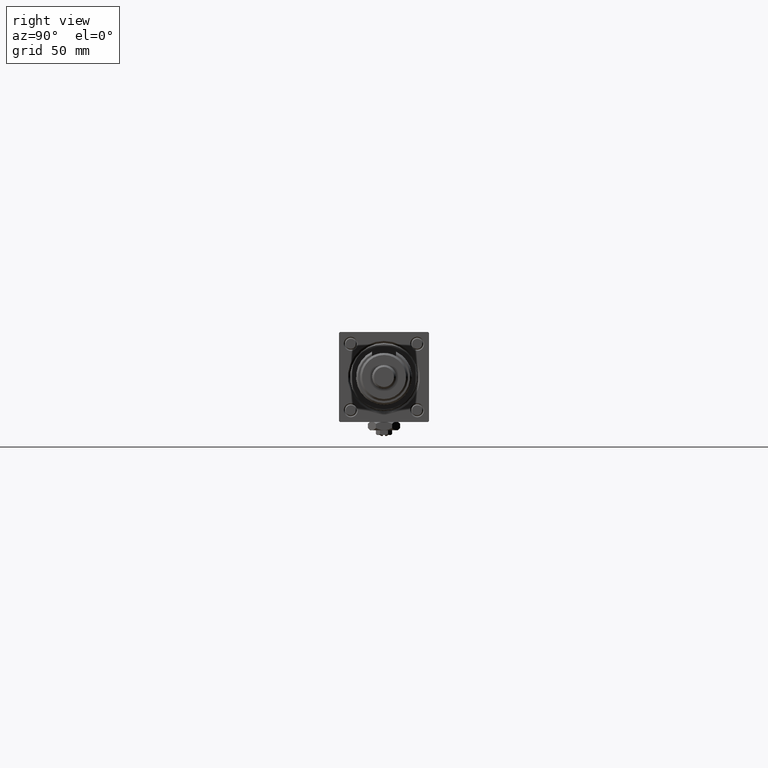
[diagram: clean part render]
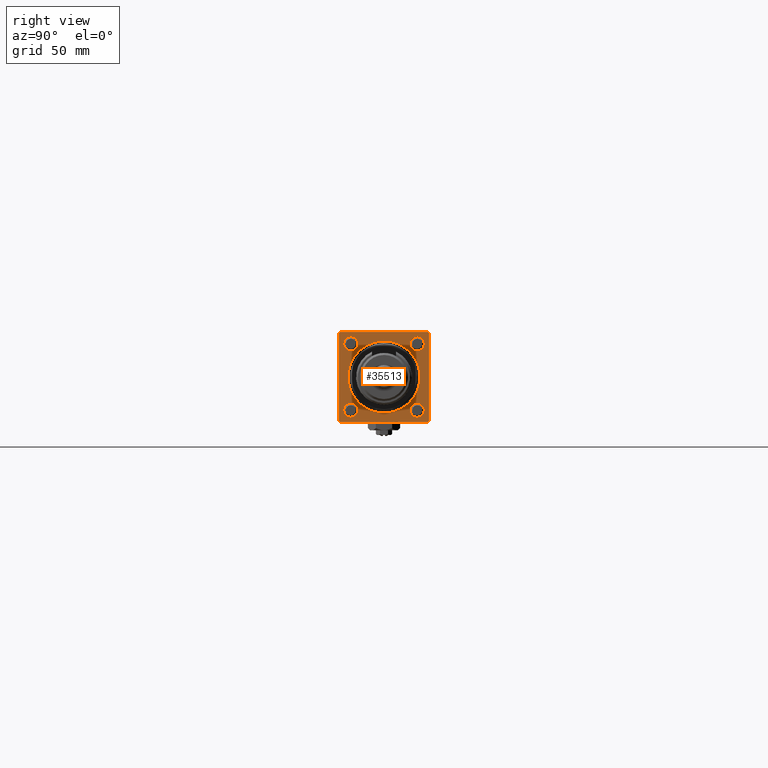
[diagram: same view with one face highlighted and labeled with its STEP entity id]
A machine part, right view. The second image highlights one B-rep face of the part: STEP entity #35513.
In plain terms, the highlighted planar face has unit normal (-1, 0, 0).
Its self-contained STEP definition (entity closure, byte-faithful):
#985 = CARTESIAN_POINT ( 'NONE',  ( 263.0000000000000000, 22.50000000000000355, 22.50000000000000355 ) ) ;
#1151 = DIRECTION ( 'NONE',  ( -1.000000000000000000, 0.000000000000000000, -0.000000000000000000 ) ) ;
#1271 = AXIS2_PLACEMENT_3D ( 'NONE', #1752, #1151, #40108 ) ;
#1402 = VERTEX_POINT ( 'NONE', #20966 ) ;
#1752 = CARTESIAN_POINT ( 'NONE',  ( 263.0000000000000000, 16.59999999999999787, 16.60000000000000497 ) ) ;
#1787 = LINE ( 'NONE', #30448, #59309 ) ;
#2370 = CARTESIAN_POINT ( 'NONE',  ( 263.0000000000000000, 0.000000000000000000, 0.000000000000000000 ) ) ;
#2563 = CARTESIAN_POINT ( 'NONE',  ( 263.0000000000000000, 16.59999999999999787, -13.10000000000000142 ) ) ;
#3046 = FACE_BOUND ( 'NONE', #49193, .T. ) ;
#3192 = LINE ( 'NONE', #22189, #42950 ) ;
#3520 = DIRECTION ( 'NONE',  ( -1.000000000000000000, 0.000000000000000000, -0.000000000000000000 ) ) ;
#3949 = DIRECTION ( 'NONE',  ( -0.000000000000000000, 0.000000000000000000, 1.000000000000000000 ) ) ;
#3968 = EDGE_CURVE ( 'NONE', #51105, #8000, #19627, .T. ) ;
#4317 = LINE ( 'NONE', #33304, #38306 ) ;
#4646 = EDGE_CURVE ( 'NONE', #13878, #23155, #31043, .T. ) ;
#4768 = VECTOR ( 'NONE', #43967, 1000.000000000000000 ) ;
#5358 = EDGE_CURVE ( 'NONE', #17531, #36683, #38722, .T. ) ;
#6236 = AXIS2_PLACEMENT_3D ( 'NONE', #42947, #10488, #37945 ) ;
#7028 = ORIENTED_EDGE ( 'NONE', *, *, #27412, .T. ) ;
#7264 = CARTESIAN_POINT ( 'NONE',  ( 263.0000000000000000, 16.59999999999999787, 16.60000000000000497 ) ) ;
#7394 = PLANE ( 'NONE',  #11016 ) ;
#7566 = DIRECTION ( 'NONE',  ( 0.000000000000000000, 0.000000000000000000, 1.000000000000000000 ) ) ;
#7887 = DIRECTION ( 'NONE',  ( 0.000000000000000000, 0.000000000000000000, 1.000000000000000000 ) ) ;
#8000 = VERTEX_POINT ( 'NONE', #49248 ) ;
#8201 = EDGE_CURVE ( 'NONE', #25492, #20719, #11843, .T. ) ;
#9155 = ORIENTED_EDGE ( 'NONE', *, *, #21185, .T. ) ;
#9790 = VERTEX_POINT ( 'NONE', #17578 ) ;
#9885 = VERTEX_POINT ( 'NONE', #44285 ) ;
#10488 = DIRECTION ( 'NONE',  ( -1.000000000000000000, 0.000000000000000000, -0.000000000000000000 ) ) ;
#10526 = ORIENTED_EDGE ( 'NONE', *, *, #3968, .T. ) ;
#10926 = CIRCLE ( 'NONE', #30807, 3.500000000000003109 ) ;
#10929 = ORIENTED_EDGE ( 'NONE', *, *, #36751, .T. ) ;
#11016 = AXIS2_PLACEMENT_3D ( 'NONE', #41416, #36725, #3949 ) ;
#11018 = VERTEX_POINT ( 'NONE', #24359 ) ;
#11843 = CIRCLE ( 'NONE', #21759, 3.500000000000003109 ) ;
#12034 = DIRECTION ( 'NONE',  ( -1.000000000000000000, 0.000000000000000000, -0.000000000000000000 ) ) ;
#12366 = CARTESIAN_POINT ( 'NONE',  ( 263.0000000000000000, 16.59999999999999787, -16.60000000000000497 ) ) ;
#13015 = FACE_BOUND ( 'NONE', #54761, .T. ) ;
#13505 = VECTOR ( 'NONE', #56629, 1000.000000000000000 ) ;
#13563 = DIRECTION ( 'NONE',  ( 0.000000000000000000, 0.000000000000000000, 1.000000000000000000 ) ) ;
#13878 = VERTEX_POINT ( 'NONE', #38524 ) ;
#14927 = DIRECTION ( 'NONE',  ( -0.000000000000000000, -0.7071067811865672237, -0.7071067811865279218 ) ) ;
#15109 = EDGE_CURVE ( 'NONE', #36672, #23155, #3192, .T. ) ;
#15313 = ORIENTED_EDGE ( 'NONE', *, *, #49249, .T. ) ;
#15671 = CARTESIAN_POINT ( 'NONE',  ( 263.0000000000000000, 22.50000000000000355, -21.99999999999993960 ) ) ;
#16109 = ORIENTED_EDGE ( 'NONE', *, *, #16949, .T. ) ;
#16210 = CIRCLE ( 'NONE', #1271, 3.500000000000003109 ) ;
#16338 = ORIENTED_EDGE ( 'NONE', *, *, #5358, .F. ) ;
#16388 = CARTESIAN_POINT ( 'NONE',  ( 263.0000000000000000, -21.99999999999993960, -22.50000000000000000 ) ) ;
#16533 = CARTESIAN_POINT ( 'NONE',  ( 263.0000000000000000, -21.99999999999992539, -22.50000000000000000 ) ) ;
#16949 = EDGE_CURVE ( 'NONE', #40374, #44405, #55335, .T. ) ;
#17350 = DIRECTION ( 'NONE',  ( 0.000000000000000000, 0.000000000000000000, 1.000000000000000000 ) ) ;
#17531 = VERTEX_POINT ( 'NONE', #23168 ) ;
#17578 = CARTESIAN_POINT ( 'NONE',  ( 263.0000000000000000, -21.99999999999995381, 22.49999999999999289 ) ) ;
#17686 = FACE_BOUND ( 'NONE', #55779, .T. ) ;
#18219 = ORIENTED_EDGE ( 'NONE', *, *, #53884, .T. ) ;
#18813 = VERTEX_POINT ( 'NONE', #20923 ) ;
#18875 = CARTESIAN_POINT ( 'NONE',  ( 263.0000000000000000, 16.59999999999999787, -20.10000000000000853 ) ) ;
#18890 = DIRECTION ( 'NONE',  ( -1.000000000000000000, 0.000000000000000000, -0.000000000000000000 ) ) ;
#19627 = CIRCLE ( 'NONE', #26611, 3.500000000000003109 ) ;
#20456 = ORIENTED_EDGE ( 'NONE', *, *, #8201, .T. ) ;
#20719 = VERTEX_POINT ( 'NONE', #53968 ) ;
#20830 = AXIS2_PLACEMENT_3D ( 'NONE', #35659, #54685, #7887 ) ;
#20877 = DIRECTION ( 'NONE',  ( 0.000000000000000000, 0.000000000000000000, 1.000000000000000000 ) ) ;
#20923 = CARTESIAN_POINT ( 'NONE',  ( 263.0000000000000000, 21.99999999999997513, 22.50000000000000355 ) ) ;
#20966 = CARTESIAN_POINT ( 'NONE',  ( 263.0000000000000000, -22.49999999999999645, 21.99999999999999289 ) ) ;
#21185 = EDGE_CURVE ( 'NONE', #17531, #18813, #28860, .T. ) ;
#21281 = EDGE_CURVE ( 'NONE', #25517, #9885, #43396, .T. ) ;
#21668 = VECTOR ( 'NONE', #33715, 1000.000000000000000 ) ;
#21759 = AXIS2_PLACEMENT_3D ( 'NONE', #42111, #60523, #52081 ) ;
#22116 = DIRECTION ( 'NONE',  ( 0.000000000000000000, 0.000000000000000000, 1.000000000000000000 ) ) ;
#22189 = CARTESIAN_POINT ( 'NONE',  ( 263.0000000000000000, 22.50000000000000355, -22.49999999999999645 ) ) ;
#22524 = DIRECTION ( 'NONE',  ( 0.000000000000000000, 0.000000000000000000, 1.000000000000000000 ) ) ;
#22624 = VERTEX_POINT ( 'NONE', #23241 ) ;
#22696 = EDGE_LOOP ( 'NONE', ( #28695, #10929 ) ) ;
#23155 = VERTEX_POINT ( 'NONE', #16533 ) ;
#23168 = CARTESIAN_POINT ( 'NONE',  ( 263.0000000000000000, 22.50000000000000355, 22.00000000000000355 ) ) ;
#23241 = CARTESIAN_POINT ( 'NONE',  ( 263.0000000000000000, 0.000000000000000000, -17.99999999999998934 ) ) ;
#24359 = CARTESIAN_POINT ( 'NONE',  ( 263.0000000000000000, 2.204364238465234244E-15, 17.99999999999998934 ) ) ;
#25010 = LINE ( 'NONE', #15671, #51122 ) ;
#25216 = LINE ( 'NONE', #30206, #4768 ) ;
#25492 = VERTEX_POINT ( 'NONE', #41388 ) ;
#25517 = VERTEX_POINT ( 'NONE', #27011 ) ;
#26073 = DIRECTION ( 'NONE',  ( 0.000000000000000000, -1.000000000000000000, -2.312964634635742957E-16 ) ) ;
#26587 = DIRECTION ( 'NONE',  ( -1.000000000000000000, 0.000000000000000000, -0.000000000000000000 ) ) ;
#26611 = AXIS2_PLACEMENT_3D ( 'NONE', #7264, #3520, #22524 ) ;
#27011 = CARTESIAN_POINT ( 'NONE',  ( 263.0000000000000000, -16.59999999999999076, 13.10000000000000320 ) ) ;
#27035 = FACE_BOUND ( 'NONE', #22696, .T. ) ;
#27412 = EDGE_CURVE ( 'NONE', #1402, #13878, #25216, .T. ) ;
#28398 = AXIS2_PLACEMENT_3D ( 'NONE', #51443, #60488, #22116 ) ;
#28695 = ORIENTED_EDGE ( 'NONE', *, *, #21281, .T. ) ;
#28860 = LINE ( 'NONE', #57239, #13505 ) ;
#29305 = ORIENTED_EDGE ( 'NONE', *, *, #45178, .T. ) ;
#29422 = CARTESIAN_POINT ( 'NONE',  ( 263.0000000000000000, 22.50000000000000355, -21.99999999999992539 ) ) ;
#29486 = ORIENTED_EDGE ( 'NONE', *, *, #60222, .T. ) ;
#30005 = DIRECTION ( 'NONE',  ( -0.000000000000000000, 0.7071067811865474617, 0.7071067811865474617 ) ) ;
#30206 = CARTESIAN_POINT ( 'NONE',  ( 263.0000000000000000, -22.49999999999999645, 22.49999999999999289 ) ) ;
#30339 = CARTESIAN_POINT ( 'NONE',  ( 263.0000000000000000, 21.99999999999994671, -22.49999999999999645 ) ) ;
#30448 = CARTESIAN_POINT ( 'NONE',  ( 263.0000000000000000, 22.50000000000000355, 22.50000000000000355 ) ) ;
#30624 = EDGE_LOOP ( 'NONE', ( #40427, #47539 ) ) ;
#30797 = EDGE_CURVE ( 'NONE', #22624, #11018, #61619, .T. ) ;
#30807 = AXIS2_PLACEMENT_3D ( 'NONE', #59339, #26587, #7566 ) ;
#31043 = LINE ( 'NONE', #16388, #43564 ) ;
#31719 = FACE_BOUND ( 'NONE', #30624, .T. ) ;
#31961 = CIRCLE ( 'NONE', #39917, 3.500000000000003109 ) ;
#33304 = CARTESIAN_POINT ( 'NONE',  ( 263.0000000000000000, -22.49999999999999645, 21.99999999999999289 ) ) ;
#33715 = DIRECTION ( 'NONE',  ( 0.000000000000000000, 0.000000000000000000, -1.000000000000000000 ) ) ;
#34743 = AXIS2_PLACEMENT_3D ( 'NONE', #2370, #12034, #13563 ) ;
#35041 = CARTESIAN_POINT ( 'NONE',  ( 263.0000000000000000, 16.59999999999999787, 20.10000000000000853 ) ) ;
#35513 = ADVANCED_FACE ( 'NONE', ( #13015, #3046, #17686, #27035, #31719, #51080 ), #7394, .F. ) ;
#35659 = CARTESIAN_POINT ( 'NONE',  ( 263.0000000000000000, 0.000000000000000000, 0.000000000000000000 ) ) ;
#36672 = VERTEX_POINT ( 'NONE', #30339 ) ;
#36683 = VERTEX_POINT ( 'NONE', #29422 ) ;
#36725 = DIRECTION ( 'NONE',  ( -1.000000000000000000, 0.000000000000000000, -0.000000000000000000 ) ) ;
#36728 = EDGE_CURVE ( 'NONE', #11018, #22624, #47757, .T. ) ;
#36751 = EDGE_CURVE ( 'NONE', #9885, #25517, #10926, .T. ) ;
#37945 = DIRECTION ( 'NONE',  ( 0.000000000000000000, 0.000000000000000000, 1.000000000000000000 ) ) ;
#38306 = VECTOR ( 'NONE', #14927, 1000.000000000000000 ) ;
#38524 = CARTESIAN_POINT ( 'NONE',  ( 263.0000000000000000, -22.49999999999999645, -21.99999999999992184 ) ) ;
#38722 = LINE ( 'NONE', #985, #21668 ) ;
#39917 = AXIS2_PLACEMENT_3D ( 'NONE', #12366, #40773, #17350 ) ;
#40108 = DIRECTION ( 'NONE',  ( 0.000000000000000000, 0.000000000000000000, 1.000000000000000000 ) ) ;
#40269 = EDGE_CURVE ( 'NONE', #44405, #40374, #31961, .T. ) ;
#40374 = VERTEX_POINT ( 'NONE', #18875 ) ;
#40427 = ORIENTED_EDGE ( 'NONE', *, *, #30797, .T. ) ;
#40666 = ORIENTED_EDGE ( 'NONE', *, *, #15109, .F. ) ;
#40773 = DIRECTION ( 'NONE',  ( -1.000000000000000000, 0.000000000000000000, -0.000000000000000000 ) ) ;
#40828 = EDGE_LOOP ( 'NONE', ( #7028, #54513, #40666, #15313, #16338, #9155, #29486, #18219 ) ) ;
#41388 = CARTESIAN_POINT ( 'NONE',  ( 263.0000000000000000, -16.59999999999999076, -13.10000000000000320 ) ) ;
#41416 = CARTESIAN_POINT ( 'NONE',  ( 263.0000000000000000, 0.000000000000000000, 0.000000000000000000 ) ) ;
#41799 = ORIENTED_EDGE ( 'NONE', *, *, #45123, .T. ) ;
#42111 = CARTESIAN_POINT ( 'NONE',  ( 263.0000000000000000, -16.59999999999999076, -16.60000000000000853 ) ) ;
#42603 = CARTESIAN_POINT ( 'NONE',  ( 263.0000000000000000, -16.59999999999999076, 16.60000000000000853 ) ) ;
#42947 = CARTESIAN_POINT ( 'NONE',  ( 263.0000000000000000, -16.59999999999999076, -16.60000000000000853 ) ) ;
#42950 = VECTOR ( 'NONE', #60251, 1000.000000000000000 ) ;
#43396 = CIRCLE ( 'NONE', #46383, 3.500000000000003109 ) ;
#43564 = VECTOR ( 'NONE', #48885, 1000.000000000000000 ) ;
#43967 = DIRECTION ( 'NONE',  ( 0.000000000000000000, 0.000000000000000000, -1.000000000000000000 ) ) ;
#44285 = CARTESIAN_POINT ( 'NONE',  ( 263.0000000000000000, -16.59999999999999076, 20.10000000000001208 ) ) ;
#44405 = VERTEX_POINT ( 'NONE', #2563 ) ;
#45123 = EDGE_CURVE ( 'NONE', #20719, #25492, #56058, .T. ) ;
#45178 = EDGE_CURVE ( 'NONE', #8000, #51105, #16210, .T. ) ;
#46383 = AXIS2_PLACEMENT_3D ( 'NONE', #42603, #18890, #20877 ) ;
#47539 = ORIENTED_EDGE ( 'NONE', *, *, #36728, .T. ) ;
#47757 = CIRCLE ( 'NONE', #20830, 17.99999999999998934 ) ;
#48885 = DIRECTION ( 'NONE',  ( 0.000000000000000000, 0.7071067811865426878, -0.7071067811865524577 ) ) ;
#49193 = EDGE_LOOP ( 'NONE', ( #16109, #60498 ) ) ;
#49248 = CARTESIAN_POINT ( 'NONE',  ( 263.0000000000000000, 16.59999999999999787, 13.10000000000000142 ) ) ;
#49249 = EDGE_CURVE ( 'NONE', #36672, #36683, #25010, .T. ) ;
#51080 = FACE_OUTER_BOUND ( 'NONE', #40828, .T. ) ;
#51105 = VERTEX_POINT ( 'NONE', #35041 ) ;
#51122 = VECTOR ( 'NONE', #30005, 1000.000000000000114 ) ;
#51443 = CARTESIAN_POINT ( 'NONE',  ( 263.0000000000000000, 16.59999999999999787, -16.60000000000000497 ) ) ;
#52081 = DIRECTION ( 'NONE',  ( 0.000000000000000000, 0.000000000000000000, 1.000000000000000000 ) ) ;
#53884 = EDGE_CURVE ( 'NONE', #9790, #1402, #4317, .T. ) ;
#53968 = CARTESIAN_POINT ( 'NONE',  ( 263.0000000000000000, -16.59999999999999076, -20.10000000000000853 ) ) ;
#54513 = ORIENTED_EDGE ( 'NONE', *, *, #4646, .T. ) ;
#54685 = DIRECTION ( 'NONE',  ( -1.000000000000000000, 0.000000000000000000, -0.000000000000000000 ) ) ;
#54761 = EDGE_LOOP ( 'NONE', ( #41799, #20456 ) ) ;
#55335 = CIRCLE ( 'NONE', #28398, 3.500000000000003109 ) ;
#55779 = EDGE_LOOP ( 'NONE', ( #29305, #10526 ) ) ;
#56058 = CIRCLE ( 'NONE', #6236, 3.500000000000003109 ) ;
#56629 = DIRECTION ( 'NONE',  ( 0.000000000000000000, -0.7071067811865672237, 0.7071067811865279218 ) ) ;
#57239 = CARTESIAN_POINT ( 'NONE',  ( 263.0000000000000000, 21.99999999999997513, 22.50000000000000355 ) ) ;
#59309 = VECTOR ( 'NONE', #26073, 1000.000000000000000 ) ;
#59339 = CARTESIAN_POINT ( 'NONE',  ( 263.0000000000000000, -16.59999999999999076, 16.60000000000000853 ) ) ;
#60222 = EDGE_CURVE ( 'NONE', #18813, #9790, #1787, .T. ) ;
#60251 = DIRECTION ( 'NONE',  ( 0.000000000000000000, -1.000000000000000000, -7.709882115452476934E-17 ) ) ;
#60488 = DIRECTION ( 'NONE',  ( -1.000000000000000000, 0.000000000000000000, -0.000000000000000000 ) ) ;
#60498 = ORIENTED_EDGE ( 'NONE', *, *, #40269, .T. ) ;
#60523 = DIRECTION ( 'NONE',  ( -1.000000000000000000, 0.000000000000000000, -0.000000000000000000 ) ) ;
#61619 = CIRCLE ( 'NONE', #34743, 17.99999999999998934 ) ;